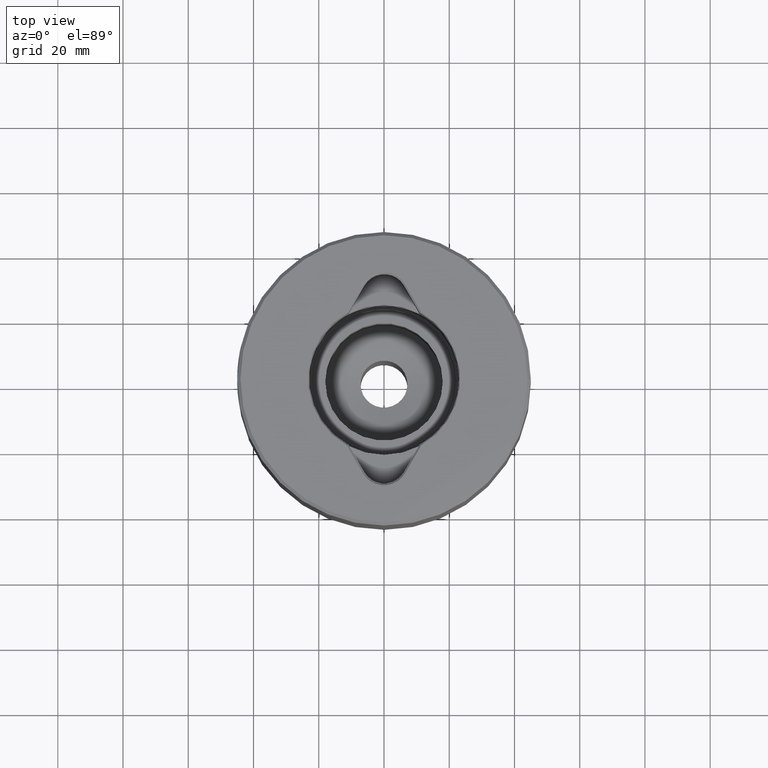
[diagram: clean part render]
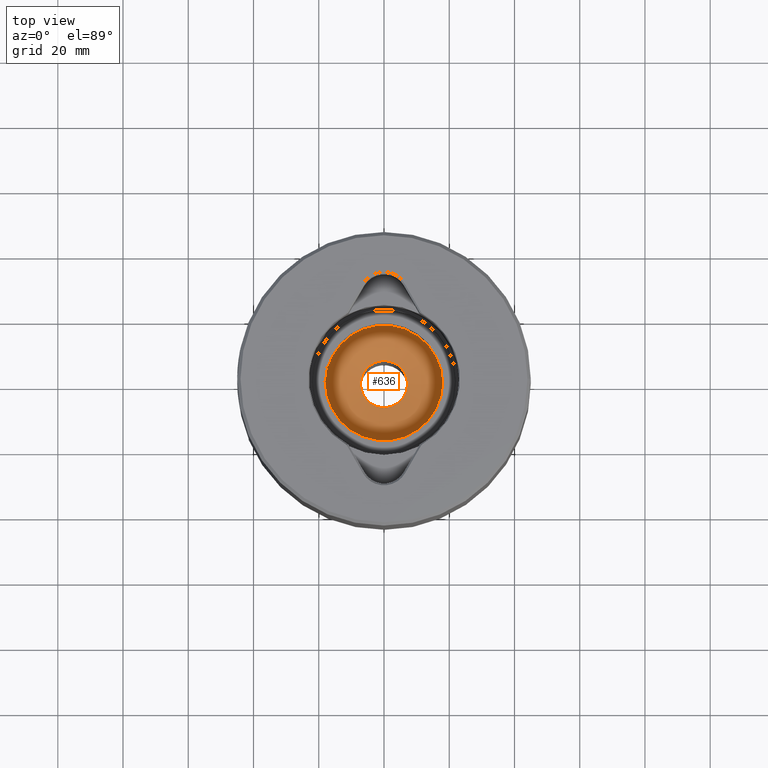
[diagram: same view with one face highlighted and labeled with its STEP entity id]
A machine part, top view. The second image highlights one B-rep face of the part: STEP entity #636.
In plain terms, the highlighted conical surface has half-angle 77 deg.
Its self-contained STEP definition (entity closure, byte-faithful):
#75 = CARTESIAN_POINT ( 'NONE',  ( 7.200000000000000178, 0.0000000000000000000, -94.49337646415608560 ) ) ;
#129 = ORIENTED_EDGE ( 'NONE', *, *, #859, .T. ) ;
#167 = EDGE_LOOP ( 'NONE', ( #662 ) ) ;
#231 = FACE_BOUND ( 'NONE', #1907, .T. ) ;
#324 = DIRECTION ( 'NONE',  ( 1.000000000000000000, 0.0000000000000000000, 0.0000000000000000000 ) ) ;
#339 = DIRECTION ( 'NONE',  ( -0.0000000000000000000, -0.0000000000000000000, 1.000000000000000000 ) ) ;
#440 = DIRECTION ( 'NONE',  ( 1.000000000000000000, 0.0000000000000000000, 0.0000000000000000000 ) ) ;
#448 = DIRECTION ( 'NONE',  ( 0.0000000000000000000, 0.0000000000000000000, -1.000000000000000000 ) ) ;
#599 = CARTESIAN_POINT ( 'NONE',  ( 0.0000000000000000000, 0.0000000000000000000, -94.49337646415608560 ) ) ;
#636 = ADVANCED_FACE ( 'NONE', ( #231, #1632 ), #967, .F. ) ;
#662 = ORIENTED_EDGE ( 'NONE', *, *, #1654, .T. ) ;
#772 = CARTESIAN_POINT ( 'NONE',  ( 17.99999999999998579, 0.0000000000000000000, -92.00000000000000000 ) ) ;
#859 = EDGE_CURVE ( 'NONE', #1711, #1711, #1282, .T. ) ;
#883 = VERTEX_POINT ( 'NONE', #772 ) ;
#967 = CONICAL_SURFACE ( 'NONE', #1601, 17.99999999999998579, 1.343903524035633623 ) ;
#1028 = DIRECTION ( 'NONE',  ( 1.000000000000000000, 0.0000000000000000000, 0.0000000000000000000 ) ) ;
#1124 = CIRCLE ( 'NONE', #1674, 17.99999999999998579 ) ;
#1233 = AXIS2_PLACEMENT_3D ( 'NONE', #599, #448, #440 ) ;
#1282 = CIRCLE ( 'NONE', #1233, 7.200000000000000178 ) ;
#1314 = CARTESIAN_POINT ( 'NONE',  ( 0.0000000000000000000, 0.0000000000000000000, -92.00000000000000000 ) ) ;
#1601 = AXIS2_PLACEMENT_3D ( 'NONE', #1804, #2006, #1028 ) ;
#1632 = FACE_OUTER_BOUND ( 'NONE', #167, .T. ) ;
#1654 = EDGE_CURVE ( 'NONE', #883, #883, #1124, .T. ) ;
#1674 = AXIS2_PLACEMENT_3D ( 'NONE', #1314, #339, #324 ) ;
#1711 = VERTEX_POINT ( 'NONE', #75 ) ;
#1804 = CARTESIAN_POINT ( 'NONE',  ( 0.0000000000000000000, 0.0000000000000000000, -92.00000000000000000 ) ) ;
#1907 = EDGE_LOOP ( 'NONE', ( #129 ) ) ;
#2006 = DIRECTION ( 'NONE',  ( -0.0000000000000000000, -0.0000000000000000000, 1.000000000000000000 ) ) ;